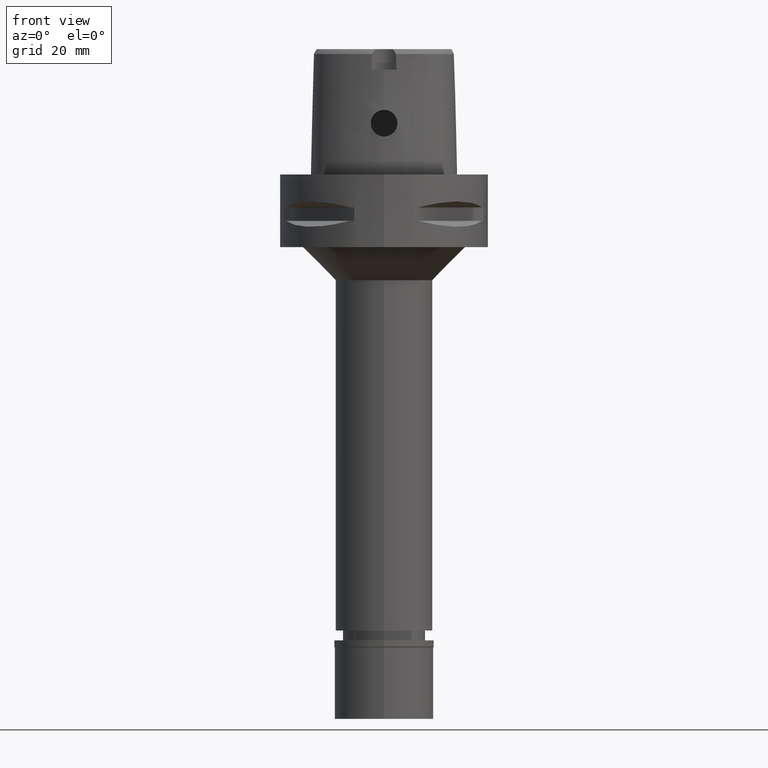
[diagram: clean part render]
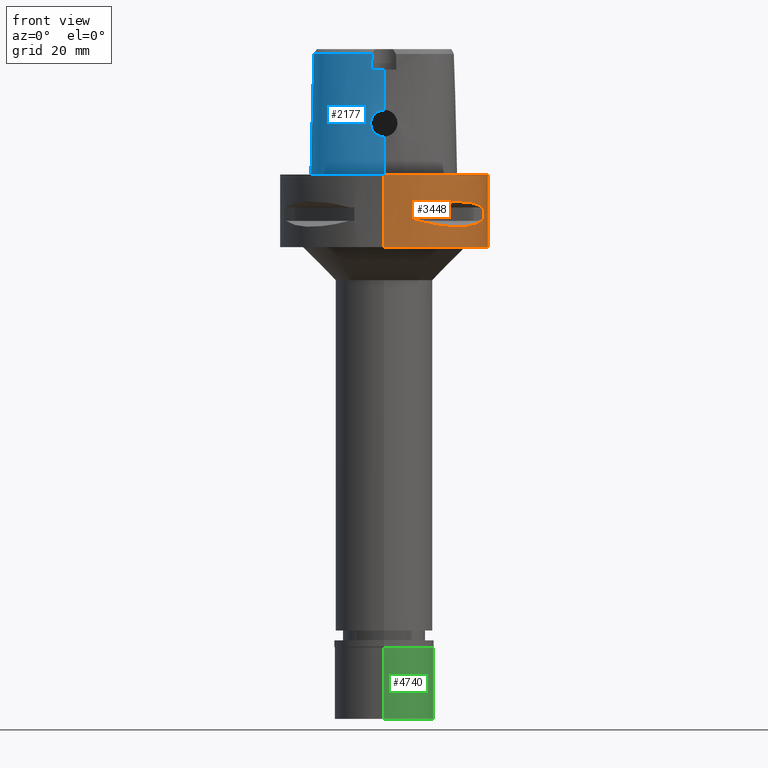
[diagram: same view with three faces highlighted in distinct colors, each labeled with its STEP entity id]
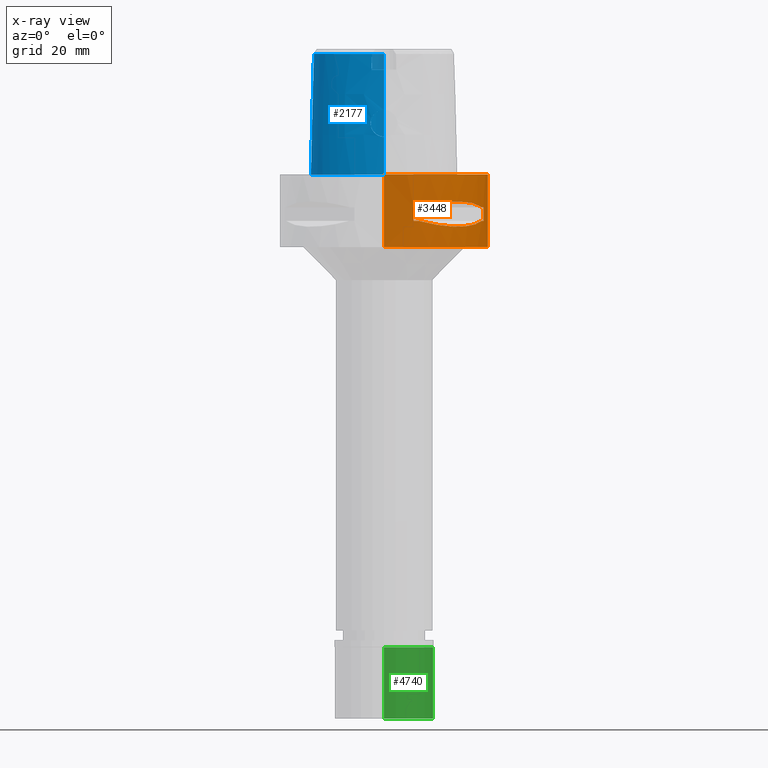
[diagram: x-ray of the same camera — body ghosted, the three highlighted faces saturated]
A machine part, front view with three faces highlighted in distinct colors.
The next image is the same camera in x-ray (body ghosted, the three faces saturated) — at least one of them is partly hidden behind the body in this view.
Their STEP definitions:

[orange] entity #3448 — the highlighted cylindrical surface (partial cylindrical patch) has radius 31.5 mm, axis along (0, 0, -1).
#1 = CARTESIAN_POINT ( 'NONE',  ( 8.981198972019999616, -30.19251670572000279, -9.950000000000001066 ) ) ;
#122 = LINE ( 'NONE', #2095, #3917 ) ;
#156 = B_SPLINE_CURVE_WITH_KNOTS ( 'NONE', 3,
 ( #4086, #4113, #2160, #1426, #1448, #232, #2215, #1370, #4639, #1171 ),
 .UNSPECIFIED., .F., .F.,
 ( 4, 2, 2, 2, 4 ),
 ( 0.0000000000000000000, 0.2500000000000000555, 0.5000000000000001110, 0.7500000000000002220, 1.000000000000000000 ),
 .UNSPECIFIED. ) ;
#160 = CARTESIAN_POINT ( 'NONE',  ( 29.71690375017999841, 10.44775724750000023, -9.950000000002001244 ) ) ;
#187 = DIRECTION ( 'NONE',  ( 0.0000000000000000000, 0.0000000000000000000, 1.000000000000000000 ) ) ;
#190 = EDGE_CURVE ( 'NONE', #754, #648, #3267, .T. ) ;
#215 = CARTESIAN_POINT ( 'NONE',  ( 29.71690375017999841, 10.44775724750000023, -9.950000000002001244 ) ) ;
#232 = CARTESIAN_POINT ( 'NONE',  ( 23.90617837153845571, -20.64154884321403571, -8.160613588491566261 ) ) ;
#266 = EDGE_CURVE ( 'NONE', #3827, #3046, #2297, .T. ) ;
#291 = ORIENTED_EDGE ( 'NONE', *, *, #4154, .T. ) ;
#294 = CARTESIAN_POINT ( 'NONE',  ( 27.88214534470568395, 14.84422749199026548, -8.906206096500943303 ) ) ;
#323 = CARTESIAN_POINT ( 'NONE',  ( 26.54368690921830520, -16.96123479565102699, -15.41365572341627121 ) ) ;
#328 = ORIENTED_EDGE ( 'NONE', *, *, #2028, .F. ) ;
#339 = VECTOR ( 'NONE', #3882, 1000.000000000000000 ) ;
#369 = EDGE_LOOP ( 'NONE', ( #1149, #328, #1451, #1521, #2359, #1048, #770, #291 ) ) ;
#392 = DIRECTION ( 'NONE',  ( 0.0000000000000000000, 0.0000000000000000000, 1.000000000000000000 ) ) ;
#399 = DIRECTION ( 'NONE',  ( 0.2851174276831918153, -0.9584925938322735872, 0.0000000000000000000 ) ) ;
#407 = CARTESIAN_POINT ( 'NONE',  ( 0.0000000000000000000, -31.50000000000000000, 0.0000000000000000000 ) ) ;
#410 = VERTEX_POINT ( 'NONE', #1 ) ;
#419 = CARTESIAN_POINT ( 'NONE',  ( 14.89252659060408668, 27.86285265925483046, -15.10765629752815009 ) ) ;
#426 = FACE_BOUND ( 'NONE', #1758, .T. ) ;
#434 = CARTESIAN_POINT ( 'NONE',  ( 30.19251670572000279, -8.981198972016999349, -14.05000000000000071 ) ) ;
#436 = CARTESIAN_POINT ( 'NONE',  ( 16.96123479565062198, 26.54368690921844731, -15.41365572341616819 ) ) ;
#460 = CARTESIAN_POINT ( 'NONE',  ( 21.46242677078534911, 23.08532645887771650, -15.83938991065519630 ) ) ;
#562 = CARTESIAN_POINT ( 'NONE',  ( 0.0000000000000000000, 1.319556926080999853E-14, -22.00000000000000000 ) ) ;
#603 = EDGE_CURVE ( 'NONE', #410, #3857, #122, .T. ) ;
#648 = VERTEX_POINT ( 'NONE', #1985 ) ;
#655 = CARTESIAN_POINT ( 'NONE',  ( 10.44775724750000023, 29.71690375017999841, -9.950000000002001244 ) ) ;
#660 = CARTESIAN_POINT ( 'NONE',  ( 29.71690375017999841, -10.44775724750000023, -14.05000000000000071 ) ) ;
#685 = CARTESIAN_POINT ( 'NONE',  ( 12.70097436183467110, 28.92472615205410236, -9.353533115209119231 ) ) ;
#698 = EDGE_CURVE ( 'NONE', #2826, #4051, #3151, .T. ) ;
#710 = B_SPLINE_CURVE_WITH_KNOTS ( 'NONE', 3,
 ( #215, #2227, #294, #3736, #3442, #2630, #4177, #3366, #685, #4955 ),
 .UNSPECIFIED., .F., .F.,
 ( 4, 2, 2, 2, 4 ),
 ( 0.0000000000000000000, 0.2500000000000000000, 0.5000000000000000000, 0.7500000000000000000, 1.000000000000000000 ),
 .UNSPECIFIED. ) ;
#713 = CARTESIAN_POINT ( 'NONE',  ( 26.01217882833934780, -17.76952662673609851, -15.52665221626610403 ) ) ;
#754 = VERTEX_POINT ( 'NONE', #3345 ) ;
#770 = ORIENTED_EDGE ( 'NONE', *, *, #3549, .T. ) ;
#785 = FACE_BOUND ( 'NONE', #369, .T. ) ;
#825 = CARTESIAN_POINT ( 'NONE',  ( 26.58330558444617608, 16.89910283486720743, -15.40446471307533827 ) ) ;
#832 = FACE_OUTER_BOUND ( 'NONE', #2686, .T. ) ;
#846 = CARTESIAN_POINT ( 'NONE',  ( 27.11872488589586183, 16.03138450077837618, -15.26880420107759129 ) ) ;
#873 = CARTESIAN_POINT ( 'NONE',  ( 0.0000000000000000000, 31.50000000000000000, -22.00000000000000000 ) ) ;
#1000 = AXIS2_PLACEMENT_3D ( 'NONE', #562, #187, #4344 ) ;
#1031 = CARTESIAN_POINT ( 'NONE',  ( 13.25636937907128399, -28.62019653467633518, -14.74888225542383857 ) ) ;
#1048 = ORIENTED_EDGE ( 'NONE', *, *, #603, .F. ) ;
#1133 = CARTESIAN_POINT ( 'NONE',  ( 8.981198972016999349, -30.19251670572000279, -14.05000000000000071 ) ) ;
#1149 = ORIENTED_EDGE ( 'NONE', *, *, #1340, .T. ) ;
#1171 = CARTESIAN_POINT ( 'NONE',  ( 29.71690375017999841, -10.44775724750000023, -9.950000000002001244 ) ) ;
#1235 = DIRECTION ( 'NONE',  ( 0.0000000000000000000, 0.0000000000000000000, -1.000000000000000000 ) ) ;
#1245 = EDGE_CURVE ( 'NONE', #3105, #3046, #3989, .T. ) ;
#1275 = CARTESIAN_POINT ( 'NONE',  ( 20.18579225686753986, 24.23018836744649462, -15.78559396979147422 ) ) ;
#1340 = EDGE_CURVE ( 'NONE', #3284, #1834, #4721, .T. ) ;
#1370 = CARTESIAN_POINT ( 'NONE',  ( 27.88210502990664352, -14.84430321566176403, -8.906184732005366200 ) ) ;
#1421 = CARTESIAN_POINT ( 'NONE',  ( 10.44775724750000023, -29.71690375017999841, -9.950000000002001244 ) ) ;
#1426 = CARTESIAN_POINT ( 'NONE',  ( 18.81455742174600942, -25.37277178159833824, -8.309746333095063164 ) ) ;
#1438 = CARTESIAN_POINT ( 'NONE',  ( 26.29071741523342709, -17.35163608580722894, -15.46976201925860828 ) ) ;
#1448 = CARTESIAN_POINT ( 'NONE',  ( 20.64154884321397176, -23.90617837153849479, -8.160627831289129830 ) ) ;
#1451 = ORIENTED_EDGE ( 'NONE', *, *, #190, .T. ) ;
#1487 = AXIS2_PLACEMENT_3D ( 'NONE', #2092, #4809, #3636 ) ;
#1491 = VECTOR ( 'NONE', #1235, 1000.000000000000000 ) ;
#1515 = CARTESIAN_POINT ( 'NONE',  ( 15.11986997312413017, -27.64634172017517599, -15.11207862404423352 ) ) ;
#1521 = ORIENTED_EDGE ( 'NONE', *, *, #3323, .F. ) ;
#1546 = DIRECTION ( 'NONE',  ( 0.9584925938322735872, 0.2851174276831918153, 0.0000000000000000000 ) ) ;
#1555 = CARTESIAN_POINT ( 'NONE',  ( 17.05047092244466000, 26.48642424310579813, -15.42670883407955884 ) ) ;
#1608 = CARTESIAN_POINT ( 'NONE',  ( 30.19251670572000279, 8.981198972016999349, -9.950000000000001066 ) ) ;
#1621 = DIRECTION ( 'NONE',  ( 0.0000000000000000000, 0.0000000000000000000, 1.000000000000000000 ) ) ;
#1663 = DIRECTION ( 'NONE',  ( 0.3316748332540863653, -0.9433937698468619626, 0.0000000000000000000 ) ) ;
#1691 = EDGE_CURVE ( 'NONE', #2745, #2869, #3180, .T. ) ;
#1725 = AXIS2_PLACEMENT_3D ( 'NONE', #2399, #4349, #2375 ) ;
#1758 = EDGE_LOOP ( 'NONE', ( #3200, #4683, #3103, #3004, #3053, #3324, #4545, #4759 ) ) ;
#1781 = DIRECTION ( 'NONE',  ( 0.0000000000000000000, 0.0000000000000000000, -1.000000000000000000 ) ) ;
#1834 = VERTEX_POINT ( 'NONE', #2774 ) ;
#1850 = CARTESIAN_POINT ( 'NONE',  ( 10.44775724750000023, -29.71690375017999841, -14.05000000000000071 ) ) ;
#1872 = CARTESIAN_POINT ( 'NONE',  ( 16.03138450079904231, -27.11872488588858587, -15.26880420108306247 ) ) ;
#1903 = EDGE_CURVE ( 'NONE', #3827, #3927, #2413, .T. ) ;
#1939 = CARTESIAN_POINT ( 'NONE',  ( 12.73197616791283870, 28.91382665367748928, -14.65467361754843800 ) ) ;
#1977 = DIRECTION ( 'NONE',  ( 0.0000000000000000000, 0.0000000000000000000, -1.000000000000000000 ) ) ;
#1985 = CARTESIAN_POINT ( 'NONE',  ( 29.71690375017999841, -10.44775724750000023, -14.05000000000000071 ) ) ;
#2028 = EDGE_CURVE ( 'NONE', #754, #1834, #5020, .T. ) ;
#2030 = CARTESIAN_POINT ( 'NONE',  ( 10.44775724750000023, 29.71690375017999841, -14.05000000000000071 ) ) ;
#2049 = AXIS2_PLACEMENT_3D ( 'NONE', #4322, #392, #3888 ) ;
#2051 = VECTOR ( 'NONE', #1621, 1000.000000000000000 ) ;
#2057 = CIRCLE ( 'NONE', #3042, 31.50000000000000711 ) ;
#2092 = CARTESIAN_POINT ( 'NONE',  ( 0.0000000000000000000, 1.319556926080999853E-14, -14.05000000000000071 ) ) ;
#2095 = CARTESIAN_POINT ( 'NONE',  ( 8.981198972016999349, -30.19251670572000279, -9.950000000000001066 ) ) ;
#2156 = ORIENTED_EDGE ( 'NONE', *, *, #3965, .T. ) ;
#2160 = CARTESIAN_POINT ( 'NONE',  ( 14.84422749211558390, -27.88214534463893557, -8.906206096465615119 ) ) ;
#2199 = CIRCLE ( 'NONE', #4858, 31.50000000000000711 ) ;
#2210 = VERTEX_POINT ( 'NONE', #1421 ) ;
#2215 = CARTESIAN_POINT ( 'NONE',  ( 25.37272068407230918, -18.81462633020653286, -8.309724968634816022 ) ) ;
#2227 = CARTESIAN_POINT ( 'NONE',  ( 28.92474506844685678, 12.70092055730897940, -9.353547358229718611 ) ) ;
#2232 = ORIENTED_EDGE ( 'NONE', *, *, #2303, .T. ) ;
#2235 = CARTESIAN_POINT ( 'NONE',  ( 11.58970337496372238, -29.31542262583958802, -14.35229357167590614 ) ) ;
#2297 = CIRCLE ( 'NONE', #4390, 31.50000000000001776 ) ;
#2303 = EDGE_CURVE ( 'NONE', #2826, #4378, #4891, .T. ) ;
#2336 = LINE ( 'NONE', #3878, #2962 ) ;
#2359 = ORIENTED_EDGE ( 'NONE', *, *, #4446, .T. ) ;
#2368 = CARTESIAN_POINT ( 'NONE',  ( 8.981198972016999349, 30.19251670572000279, -14.05000000000000071 ) ) ;
#2375 = DIRECTION ( 'NONE',  ( 0.0000000000000000000, -1.000000000000000000, 0.0000000000000000000 ) ) ;
#2392 = CARTESIAN_POINT ( 'NONE',  ( 17.76952662672345795, 26.01217882834468398, -15.52665221626313041 ) ) ;
#2399 = CARTESIAN_POINT ( 'NONE',  ( 0.0000000000000000000, 1.319556926080999853E-14, 7.750000000000000000 ) ) ;
#2407 = VERTEX_POINT ( 'NONE', #655 ) ;
#2413 = LINE ( 'NONE', #2368, #2051 ) ;
#2414 = CARTESIAN_POINT ( 'NONE',  ( 8.981198972016999349, 30.19251670572000279, -9.950000000000001066 ) ) ;
#2437 = CARTESIAN_POINT ( 'NONE',  ( 26.84474411199017752, 16.48208282228755550, -15.34094883778170093 ) ) ;
#2458 = AXIS2_PLACEMENT_3D ( 'NONE', #3687, #2573, #3659 ) ;
#2462 = CIRCLE ( 'NONE', #1487, 31.50000000000000711 ) ;
#2486 = DIRECTION ( 'NONE',  ( 0.0000000000000000000, 0.0000000000000000000, -1.000000000000000000 ) ) ;
#2507 = DIRECTION ( 'NONE',  ( 0.0000000000000000000, 0.0000000000000000000, 1.000000000000000000 ) ) ;
#2573 = DIRECTION ( 'NONE',  ( 0.0000000000000000000, 0.0000000000000000000, -1.000000000000000000 ) ) ;
#2578 = CARTESIAN_POINT ( 'NONE',  ( 27.86285265926396093, -14.89252659057812345, -15.10765629752127559 ) ) ;
#2630 = CARTESIAN_POINT ( 'NONE',  ( 20.64154884328073081, 23.90617837147177482, -8.160613588468017099 ) ) ;
#2638 = CARTESIAN_POINT ( 'NONE',  ( 25.43927894890251551, -18.59229662067769340, -15.62866126335070049 ) ) ;
#2659 = CARTESIAN_POINT ( 'NONE',  ( 24.23018836743425197, -20.18579225689640921, -15.78559396979826346 ) ) ;
#2681 = CARTESIAN_POINT ( 'NONE',  ( 16.48208282229863286, -26.84474411198628374, -15.34094883778463903 ) ) ;
#2686 = EDGE_LOOP ( 'NONE', ( #2232, #3969, #2156, #4785 ) ) ;
#2709 = CARTESIAN_POINT ( 'NONE',  ( 0.0000000000000000000, 1.319556926080999853E-14, -9.950000000000001066 ) ) ;
#2745 = VERTEX_POINT ( 'NONE', #3177 ) ;
#2754 = CARTESIAN_POINT ( 'NONE',  ( 0.0000000000000000000, 31.50000000000000000, 0.0000000000000000000 ) ) ;
#2773 = CARTESIAN_POINT ( 'NONE',  ( 29.31542262584909153, 11.58970337493671998, -14.35229357166876873 ) ) ;
#2774 = CARTESIAN_POINT ( 'NONE',  ( 30.19251670572000279, -8.981198972016999349, -9.950000000000001066 ) ) ;
#2806 = CYLINDRICAL_SURFACE ( 'NONE', #1725, 31.50000000000000000 ) ;
#2826 = VERTEX_POINT ( 'NONE', #2754 ) ;
#2869 = VERTEX_POINT ( 'NONE', #160 ) ;
#2962 = VECTOR ( 'NONE', #1781, 1000.000000000000000 ) ;
#3004 = ORIENTED_EDGE ( 'NONE', *, *, #1245, .F. ) ;
#3013 = CARTESIAN_POINT ( 'NONE',  ( 26.48642424310494903, -17.05047092244668505, -15.42670883408004023 ) ) ;
#3021 = DIRECTION ( 'NONE',  ( 0.9584925938322735872, -0.2851174276831918153, 0.0000000000000000000 ) ) ;
#3042 = AXIS2_PLACEMENT_3D ( 'NONE', #3931, #4664, #1663 ) ;
#3044 = CARTESIAN_POINT ( 'NONE',  ( 23.08532645887072476, -21.46242677080184436, -15.83938991065908120 ) ) ;
#3046 = VERTEX_POINT ( 'NONE', #4072 ) ;
#3053 = ORIENTED_EDGE ( 'NONE', *, *, #3212, .T. ) ;
#3099 = CARTESIAN_POINT ( 'NONE',  ( 0.0000000000000000000, 1.319556926080999853E-14, -9.950000000000001066 ) ) ;
#3103 = ORIENTED_EDGE ( 'NONE', *, *, #266, .T. ) ;
#3105 = VERTEX_POINT ( 'NONE', #3264 ) ;
#3151 = LINE ( 'NONE', #3886, #4163 ) ;
#3173 = CARTESIAN_POINT ( 'NONE',  ( 28.62019653469295832, 13.25636937902403645, -14.74888225541133124 ) ) ;
#3177 = CARTESIAN_POINT ( 'NONE',  ( 30.19251670572000279, 8.981198972019999616, -9.950000000000001066 ) ) ;
#3180 = CIRCLE ( 'NONE', #4656, 31.50000000000001776 ) ;
#3181 = AXIS2_PLACEMENT_3D ( 'NONE', #4640, #4917, #3021 ) ;
#3187 = CIRCLE ( 'NONE', #4886, 31.50000000000001776 ) ;
#3200 = ORIENTED_EDGE ( 'NONE', *, *, #4709, .T. ) ;
#3203 = CARTESIAN_POINT ( 'NONE',  ( 27.64634172018763536, 15.11986997308868830, -15.11207862403486146 ) ) ;
#3212 = EDGE_CURVE ( 'NONE', #3105, #4524, #2462, .T. ) ;
#3264 = CARTESIAN_POINT ( 'NONE',  ( 29.71690375017999841, 10.44775724750000023, -14.05000000000000071 ) ) ;
#3267 = CIRCLE ( 'NONE', #3181, 31.50000000000001776 ) ;
#3284 = VERTEX_POINT ( 'NONE', #4151 ) ;
#3323 = EDGE_CURVE ( 'NONE', #4382, #648, #4828, .T. ) ;
#3324 = ORIENTED_EDGE ( 'NONE', *, *, #3394, .F. ) ;
#3342 = CARTESIAN_POINT ( 'NONE',  ( 0.0000000000000000000, 1.319556926080999853E-14, -9.950000000000001066 ) ) ;
#3345 = CARTESIAN_POINT ( 'NONE',  ( 30.19251670572000279, -8.981198972019999616, -14.05000000000000071 ) ) ;
#3366 = CARTESIAN_POINT ( 'NONE',  ( 14.84430321578704337, 27.88210502983996619, -8.906184731970038015 ) ) ;
#3394 = EDGE_CURVE ( 'NONE', #2745, #4524, #3469, .T. ) ;
#3397 = CARTESIAN_POINT ( 'NONE',  ( 16.89910283486738862, -26.58330558444628977, -15.40446471307545906 ) ) ;
#3442 = CARTESIAN_POINT ( 'NONE',  ( 23.90617837147169666, 20.64154884328081252, -8.160627831312682545 ) ) ;
#3448 = ADVANCED_FACE ( 'NONE', ( #832, #785, #426 ), #2806, .T. ) ;
#3469 = LINE ( 'NONE', #1608, #1491 ) ;
#3547 = CARTESIAN_POINT ( 'NONE',  ( 0.0000000000000000000, 1.319556926080999853E-14, -14.05000000000000071 ) ) ;
#3549 = EDGE_CURVE ( 'NONE', #410, #2210, #3187, .T. ) ;
#3555 = CARTESIAN_POINT ( 'NONE',  ( 26.70521063584740062, 16.70616724745824655, -15.37546661817944127 ) ) ;
#3574 = CARTESIAN_POINT ( 'NONE',  ( 16.98999780422272465, 26.52527364208734895, -15.41788098766619974 ) ) ;
#3636 = DIRECTION ( 'NONE',  ( 0.9433937698468619626, 0.3316748332540863653, 0.0000000000000000000 ) ) ;
#3640 = DIRECTION ( 'NONE',  ( 0.0000000000000000000, 0.0000000000000000000, -1.000000000000000000 ) ) ;
#3659 = DIRECTION ( 'NONE',  ( 0.0000000000000000000, 1.000000000000000000, 0.0000000000000000000 ) ) ;
#3687 = CARTESIAN_POINT ( 'NONE',  ( 0.0000000000000000000, 1.319556926080999853E-14, 0.0000000000000000000 ) ) ;
#3736 = CARTESIAN_POINT ( 'NONE',  ( 25.37277178168286440, 18.81455742163205258, -8.309746333130389573 ) ) ;
#3743 = CARTESIAN_POINT ( 'NONE',  ( 16.86571563436929466, -26.60451452154890717, -15.39949295786343164 ) ) ;
#3788 = CARTESIAN_POINT ( 'NONE',  ( 8.981198972019999616, 30.19251670572000279, -14.05000000000000071 ) ) ;
#3793 = CARTESIAN_POINT ( 'NONE',  ( 28.91382665368659488, -12.73197616788688968, -14.65467361754156350 ) ) ;
#3818 = CARTESIAN_POINT ( 'NONE',  ( 20.65093790438460530, -23.89673728052242296, -15.83935804901696542 ) ) ;
#3827 = VERTEX_POINT ( 'NONE', #3788 ) ;
#3857 = VERTEX_POINT ( 'NONE', #1133 ) ;
#3878 = CARTESIAN_POINT ( 'NONE',  ( 0.0000000000000000000, -31.50000000000000000, 0.0000000000000000000 ) ) ;
#3881 = EDGE_CURVE ( 'NONE', #2869, #2407, #710, .T. ) ;
#3882 = DIRECTION ( 'NONE',  ( 0.0000000000000000000, 0.0000000000000000000, 1.000000000000000000 ) ) ;
#3886 = CARTESIAN_POINT ( 'NONE',  ( 0.0000000000000000000, 31.50000000000000000, 0.0000000000000000000 ) ) ;
#3888 = DIRECTION ( 'NONE',  ( 0.9433937698468619626, -0.3316748332540863653, 0.0000000000000000000 ) ) ;
#3917 = VECTOR ( 'NONE', #2486, 1000.000000000000000 ) ;
#3918 = CARTESIAN_POINT ( 'NONE',  ( 17.35163608580045391, 26.29071741523629768, -15.46976201925701133 ) ) ;
#3927 = VERTEX_POINT ( 'NONE', #2414 ) ;
#3931 = CARTESIAN_POINT ( 'NONE',  ( 0.0000000000000000000, 1.319556926080999853E-14, -14.05000000000000071 ) ) ;
#3935 = CARTESIAN_POINT ( 'NONE',  ( 18.59229662065603605, 25.43927894891167796, -15.62866126334560413 ) ) ;
#3954 = CARTESIAN_POINT ( 'NONE',  ( 23.89673728055542767, 20.65093790437063248, -15.83935804902473343 ) ) ;
#3965 = EDGE_CURVE ( 'NONE', #4735, #4051, #4725, .T. ) ;
#3969 = ORIENTED_EDGE ( 'NONE', *, *, #4268, .T. ) ;
#3989 = B_SPLINE_CURVE_WITH_KNOTS ( 'NONE', 3,
 ( #5025, #2773, #3173, #3203, #846, #2437, #3555, #4342, #4652, #825, #4741, #3954, #460, #1275, #3935, #2392, #3918, #4296, #1555, #3574, #436, #419, #1939, #2030 ),
 .UNSPECIFIED., .F., .F.,
 ( 4, 1, 1, 1, 1, 1, 2, 2, 2, 1, 1, 1, 1, 1, 2, 2, 4 ),
 ( 0.0000000000000000000, 0.1250000000000036360, 0.1875000000000056344, 0.2187500000000066336, 0.2343750000000070222, 0.2421875000000072164, 0.2460937500000072997, 0.2500000000000073830, 0.5000000000000048850, 0.6250000000000037748, 0.6875000000000031086, 0.7187500000000027756, 0.7343750000000025535, 0.7421875000000023315, 0.7460937500000024425, 0.7500000000000025535, 1.000000000000000000 ),
 .UNSPECIFIED. ) ;
#4051 = VERTEX_POINT ( 'NONE', #873 ) ;
#4072 = CARTESIAN_POINT ( 'NONE',  ( 10.44775724750000023, 29.71690375017999841, -14.05000000000000071 ) ) ;
#4073 = CARTESIAN_POINT ( 'NONE',  ( 0.0000000000000000000, -31.50000000000000000, -22.00000000000000000 ) ) ;
#4086 = CARTESIAN_POINT ( 'NONE',  ( 10.44775724750000023, -29.71690375017999841, -9.950000000002001244 ) ) ;
#4113 = CARTESIAN_POINT ( 'NONE',  ( 12.70092055739809744, -28.92474506841551118, -9.353547358206167672 ) ) ;
#4151 = CARTESIAN_POINT ( 'NONE',  ( 29.71690375017999841, -10.44775724750000023, -9.950000000002001244 ) ) ;
#4154 = EDGE_CURVE ( 'NONE', #2210, #3284, #156, .T. ) ;
#4163 = VECTOR ( 'NONE', #3640, 1000.000000000000000 ) ;
#4177 = CARTESIAN_POINT ( 'NONE',  ( 18.81462633032052167, 25.37272068398780078, -8.309724968599487838 ) ) ;
#4230 = CARTESIAN_POINT ( 'NONE',  ( 18.86897208073048660, -25.32725744467385454, -15.69588095933403160 ) ) ;
#4243 = DIRECTION ( 'NONE',  ( 0.0000000000000000000, 0.0000000000000000000, 1.000000000000000000 ) ) ;
#4266 = DIRECTION ( 'NONE',  ( 0.2851174276831918153, 0.9584925938322735872, 0.0000000000000000000 ) ) ;
#4268 = EDGE_CURVE ( 'NONE', #4378, #4735, #2336, .T. ) ;
#4296 = CARTESIAN_POINT ( 'NONE',  ( 17.14106442934976826, 26.42800887047588532, -15.43984550238772790 ) ) ;
#4322 = CARTESIAN_POINT ( 'NONE',  ( 0.0000000000000000000, 1.319556926080999853E-14, -9.950000000000001066 ) ) ;
#4342 = CARTESIAN_POINT ( 'NONE',  ( 26.64486562695979188, 16.80193241490626122, -15.38992683735969003 ) ) ;
#4344 = DIRECTION ( 'NONE',  ( 0.0000000000000000000, -1.000000000000000000, 0.0000000000000000000 ) ) ;
#4349 = DIRECTION ( 'NONE',  ( 0.0000000000000000000, 0.0000000000000000000, -1.000000000000000000 ) ) ;
#4356 = CARTESIAN_POINT ( 'NONE',  ( 10.44775724750000023, -29.71690375017999841, -14.05000000000000071 ) ) ;
#4378 = VERTEX_POINT ( 'NONE', #407 ) ;
#4382 = VERTEX_POINT ( 'NONE', #4356 ) ;
#4390 = AXIS2_PLACEMENT_3D ( 'NONE', #3547, #1977, #4266 ) ;
#4446 = EDGE_CURVE ( 'NONE', #4382, #3857, #2057, .T. ) ;
#4524 = VERTEX_POINT ( 'NONE', #4732 ) ;
#4545 = ORIENTED_EDGE ( 'NONE', *, *, #1691, .T. ) ;
#4557 = CARTESIAN_POINT ( 'NONE',  ( 26.52527364208691196, -16.98999780422374428, -15.41788098766643778 ) ) ;
#4586 = CARTESIAN_POINT ( 'NONE',  ( 16.80193241490956879, -26.64486562695862659, -15.38992683736056932 ) ) ;
#4608 = CARTESIAN_POINT ( 'NONE',  ( 16.70616724746396642, -26.70521063584539334, -15.37546661818095473 ) ) ;
#4639 = CARTESIAN_POINT ( 'NONE',  ( 28.92472615208540887, -12.70097436174559391, -9.353533115232668393 ) ) ;
#4640 = CARTESIAN_POINT ( 'NONE',  ( 0.0000000000000000000, 1.319556926080999853E-14, -14.05000000000000071 ) ) ;
#4652 = CARTESIAN_POINT ( 'NONE',  ( 26.60451452154948981, 16.86571563436761068, -15.39949295786298400 ) ) ;
#4656 = AXIS2_PLACEMENT_3D ( 'NONE', #3099, #4243, #1546 ) ;
#4659 = DIRECTION ( 'NONE',  ( 0.0000000000000000000, 0.0000000000000000000, 1.000000000000000000 ) ) ;
#4664 = DIRECTION ( 'NONE',  ( 0.0000000000000000000, 0.0000000000000000000, -1.000000000000000000 ) ) ;
#4683 = ORIENTED_EDGE ( 'NONE', *, *, #1903, .F. ) ;
#4709 = EDGE_CURVE ( 'NONE', #2407, #3927, #2199, .T. ) ;
#4721 = CIRCLE ( 'NONE', #2049, 31.50000000000000711 ) ;
#4725 = CIRCLE ( 'NONE', #1000, 31.50000000000000000 ) ;
#4732 = CARTESIAN_POINT ( 'NONE',  ( 30.19251670572000279, 8.981198972016999349, -14.05000000000000071 ) ) ;
#4735 = VERTEX_POINT ( 'NONE', #4073 ) ;
#4741 = CARTESIAN_POINT ( 'NONE',  ( 25.32725744468093509, 18.86897208074246635, -15.69588095934180316 ) ) ;
#4759 = ORIENTED_EDGE ( 'NONE', *, *, #3881, .T. ) ;
#4785 = ORIENTED_EDGE ( 'NONE', *, *, #698, .F. ) ;
#4809 = DIRECTION ( 'NONE',  ( 0.0000000000000000000, 0.0000000000000000000, -1.000000000000000000 ) ) ;
#4828 = B_SPLINE_CURVE_WITH_KNOTS ( 'NONE', 3,
 ( #1850, #2235, #1031, #1515, #1872, #2681, #4608, #4586, #3743, #3397, #4230, #3818, #3044, #2659, #2638, #713, #1438, #4937, #3013, #4557, #323, #2578, #3793, #660 ),
 .UNSPECIFIED., .F., .F.,
 ( 4, 1, 1, 1, 1, 1, 2, 2, 2, 1, 1, 1, 1, 1, 2, 2, 4 ),
 ( 0.0000000000000000000, 0.1250000000000019429, 0.1875000000000029143, 0.2187500000000035250, 0.2343750000000039135, 0.2421875000000040801, 0.2460937500000041356, 0.2500000000000041633, 0.4999999999999987788, 0.6249999999999961142, 0.6874999999999948930, 0.7187499999999945599, 0.7343749999999943379, 0.7421874999999941158, 0.7460937499999938938, 0.7499999999999937828, 1.000000000000000000 ),
 .UNSPECIFIED. ) ;
#4858 = AXIS2_PLACEMENT_3D ( 'NONE', #3342, #2507, #4884 ) ;
#4884 = DIRECTION ( 'NONE',  ( 0.3316748332540863653, 0.9433937698468619626, 0.0000000000000000000 ) ) ;
#4886 = AXIS2_PLACEMENT_3D ( 'NONE', #2709, #4659, #399 ) ;
#4891 = CIRCLE ( 'NONE', #2458, 31.50000000000000000 ) ;
#4917 = DIRECTION ( 'NONE',  ( 0.0000000000000000000, 0.0000000000000000000, -1.000000000000000000 ) ) ;
#4937 = CARTESIAN_POINT ( 'NONE',  ( 26.42800887047440028, -17.14106442935327124, -15.43984550238855391 ) ) ;
#4955 = CARTESIAN_POINT ( 'NONE',  ( 10.44775724750000023, 29.71690375017999841, -9.950000000002001244 ) ) ;
#5020 = LINE ( 'NONE', #434, #339 ) ;
#5025 = CARTESIAN_POINT ( 'NONE',  ( 29.71690375017999841, 10.44775724750000023, -14.05000000000000071 ) ) ;

[blue] entity #2177 — the highlighted face is a freeform B-spline surface patch.
#18 = CARTESIAN_POINT ( 'NONE',  ( -2.113823674789727214, -20.67500002902034240, -1.161005397208461978E-06 ) ) ;
#24 = EDGE_CURVE ( 'NONE', #3973, #3619, #4098, .T. ) ;
#29 = CARTESIAN_POINT ( 'NONE',  ( -4.038031914720374260, -20.04584209172325870, 15.81781984753358472 ) ) ;
#44 = CARTESIAN_POINT ( 'NONE',  ( -3.848403410397717828, -20.04310851184499498, 16.79149714040716646 ) ) ;
#63 = CARTESIAN_POINT ( 'NONE',  ( -3.925407708630975545, -20.04099055260220652, 16.53138977182821634 ) ) ;
#91 = CARTESIAN_POINT ( 'NONE',  ( -3.738021026999547303, -20.04832921641929389, 17.05876513949583284 ) ) ;
#103 = CARTESIAN_POINT ( 'NONE',  ( -5.105252915177000084, 22.54305024007999947, -0.7304375801958999936 ) ) ;
#115 = CARTESIAN_POINT ( 'NONE',  ( -4.049663826248561804, -20.05088590020228523, 15.56119206774791230 ) ) ;
#125 = CARTESIAN_POINT ( 'NONE',  ( -21.44619304730999687, -6.759806567280999268, 24.59139853325999781 ) ) ;
#141 = CARTESIAN_POINT ( 'NONE',  ( -20.09619618740674696, -10.23243843868675107, 36.52186244848005003 ) ) ;
#153 = CARTESIAN_POINT ( 'NONE',  ( -17.25769860223000052, 9.963736584963999832, 37.25231658999000217 ) ) ;
#165 = VECTOR ( 'NONE', #602, 1000.000000000000114 ) ;
#184 = CARTESIAN_POINT ( 'NONE',  ( -2.503210914540999976, 22.99958943617000173, 11.93048047653000054 ) ) ;
#195 = CARTESIAN_POINT ( 'NONE',  ( -3.637738201363999835, -19.56971413236999879, 36.52186244848000030 ) ) ;
#205 = CARTESIAN_POINT ( 'NONE',  ( -10.55288408666000066, 18.94467590841999893, 11.93048047653000054 ) ) ;
#216 = CARTESIAN_POINT ( 'NONE',  ( -6.933881406493999842E-13, -20.38876923348000147, 11.44999999999999929 ) ) ;
#226 = CARTESIAN_POINT ( 'NONE',  ( -6.344715576255000045, -20.31619964721000215, -0.7304375801958999936 ) ) ;
#241 = CARTESIAN_POINT ( 'NONE',  ( -17.90324032096188134, -13.53935111955360071, 36.52186244848005003 ) ) ;
#255 = CARTESIAN_POINT ( 'NONE',  ( -1.836486898528999934, -19.76356470748000049, 37.25231658999000217 ) ) ;
#282 = CARTESIAN_POINT ( 'NONE',  ( -16.77374386013000063, -15.44292476913000201, 11.93048047653000054 ) ) ;
#305 = CARTESIAN_POINT ( 'NONE',  ( -18.89485289227999942, -12.27684381621999954, 37.25231658999000217 ) ) ;
#333 = CARTESIAN_POINT ( 'NONE',  ( -2.360389010911050356, -20.12578017861218882, 18.79373387522194960 ) ) ;
#370 = CARTESIAN_POINT ( 'NONE',  ( -3.671249123513567802, -19.60525173594972514, 34.94790829898666829 ) ) ;
#391 = CARTESIAN_POINT ( 'NONE',  ( -22.05732877207013942, -6.847636722896392136, -1.161005397208461978E-06 ) ) ;
#393 = DIRECTION ( 'NONE',  ( 1.536146892539960473E-12, 0.02499051290971940689, -0.9996876883629751687 ) ) ;
#427 = CARTESIAN_POINT ( 'NONE',  ( -2.823299992937056579, -20.10104229143709631, 18.40378355436299884 ) ) ;
#444 = CARTESIAN_POINT ( 'NONE',  ( -1.812908732308999990E-11, 22.56201468012000078, 36.52186680743999858 ) ) ;
#446 = CARTESIAN_POINT ( 'NONE',  ( -3.089131642920632359, -20.21685897408097432, 12.88004451868197009 ) ) ;
#465 = ORIENTED_EDGE ( 'NONE', *, *, #676, .F. ) ;
#468 = CARTESIAN_POINT ( 'NONE',  ( -2.852856104025950579, -20.09931387729061569, 18.37467926461776813 ) ) ;
#479 = CARTESIAN_POINT ( 'NONE',  ( -4.987110685026999946, 22.24795284958999986, 11.93048047653000054 ) ) ;
#490 = EDGE_CURVE ( 'NONE', #1791, #3619, #1394, .T. ) ;
#498 = CARTESIAN_POINT ( 'NONE',  ( -3.646271025386285114, -20.14180172674243963, 13.73229968810705337 ) ) ;
#512 = CARTESIAN_POINT ( 'NONE',  ( -0.5985508206572000001, 23.20171281890999992, 11.93048047653000054 ) ) ;
#531 = CARTESIAN_POINT ( 'NONE',  ( -3.736722311398999796, -19.67781602443999844, 31.80000000000000071 ) ) ;
#533 = CARTESIAN_POINT ( 'NONE',  ( -10.75753573655000039, 19.18839675560999680, -0.7304375801958999936 ) ) ;
#556 = CARTESIAN_POINT ( 'NONE',  ( 0.4569144571166000035, 22.85341801418000074, 24.59139853325999781 ) ) ;
#573 = CARTESIAN_POINT ( 'NONE',  ( -2.376843896515264731, 22.39422508474297757, 36.52186244848005003 ) ) ;
#587 = CARTESIAN_POINT ( 'NONE',  ( 0.6850314155794999804, 22.83959056890999761, 24.59139853325999781 ) ) ;
#600 = CARTESIAN_POINT ( 'NONE',  ( -2.086814383339319345, -20.31269213283853503, 12.02647857451320945 ) ) ;
#602 = DIRECTION ( 'NONE',  ( -4.234993304549874747E-13, -0.02499051295389925070, -0.9996876883618708298 ) ) ;
#611 = CARTESIAN_POINT ( 'NONE',  ( -18.12052909247999821, -13.74516032317999858, 24.59139853325999781 ) ) ;
#637 = CARTESIAN_POINT ( 'NONE',  ( -10.91263711300999972, -18.01320810237000103, 37.25231658999000217 ) ) ;
#676 = EDGE_CURVE ( 'NONE', #2667, #3024, #2733, .T. ) ;
#693 = CARTESIAN_POINT ( 'NONE',  ( 0.6779535350890000256, -20.37023526529000250, 11.93048047653000054 ) ) ;
#704 = CARTESIAN_POINT ( 'NONE',  ( -10.74572892936134849, 19.17433595985205130, -1.161005397208461978E-06 ) ) ;
#806 = CARTESIAN_POINT ( 'NONE',  ( -2.095753548414849732, -20.13818364214428058, 18.96577014705866304 ) ) ;
#833 = CARTESIAN_POINT ( 'NONE',  ( -3.788010122578854943, -20.11815763408452185, 14.06624340821270636 ) ) ;
#857 = CARTESIAN_POINT ( 'NONE',  ( -4.001055636210811173, -20.04208398455350704, 16.14154222857778009 ) ) ;
#866 = EDGE_CURVE ( 'NONE', #2027, #3024, #2253, .T. ) ;
#867 = CARTESIAN_POINT ( 'NONE',  ( 0.4823619556325000057, 23.48603817965999951, -0.7304375801958999936 ) ) ;
#881 = CARTESIAN_POINT ( 'NONE',  ( -3.765489374950849566, -20.12204791086956845, 14.00864527312965357 ) ) ;
#896 = CARTESIAN_POINT ( 'NONE',  ( -21.05621916115999781, -0.4440251502929999927, 37.25231658999000217 ) ) ;
#916 = CARTESIAN_POINT ( 'NONE',  ( -3.081149392577403390, -20.08583124627778460, 18.14629112890300888 ) ) ;
#927 = CARTESIAN_POINT ( 'NONE',  ( -21.57281239023999930, -9.001246194475998053, -0.7304375801958999936 ) ) ;
#940 = CARTESIAN_POINT ( 'NONE',  ( -21.07430010672443643, -0.4408303445192865433, 36.52186244848005003 ) ) ;
#950 = CARTESIAN_POINT ( 'NONE',  ( -21.31039837706000029, -4.105938496761999623, 37.25231658999000217 ) ) ;
#965 = CARTESIAN_POINT ( 'NONE',  ( -17.27359245833160983, 9.972912913898701603, 36.52186244848005003 ) ) ;
#977 = CARTESIAN_POINT ( 'NONE',  ( -13.93560872902000014, 15.24203796926999921, 24.59139853325999781 ) ) ;
#995 = CARTESIAN_POINT ( 'NONE',  ( -1.559921522257989634, -20.34641501698343546, 11.76246137009469628 ) ) ;
#1012 = CARTESIAN_POINT ( 'NONE',  ( 0.6840430853087000607, -20.68668154738999831, -0.7304375801958999936 ) ) ;
#1038 = CARTESIAN_POINT ( 'NONE',  ( -0.5036866637249095557, -20.18406862059044471, 19.52728785669985001 ) ) ;
#1054 = CARTESIAN_POINT ( 'NONE',  ( -18.90964971337798062, -12.28759719904780923, 36.52186244848005003 ) ) ;
#1066 = CARTESIAN_POINT ( 'NONE',  ( -1.853278696385999957, -20.08023933720000187, 24.59139853325999781 ) ) ;
#1097 = CARTESIAN_POINT ( 'NONE',  ( -20.36913780162999998, -10.35391846121000015, 24.59139853325999781 ) ) ;
#1121 = CARTESIAN_POINT ( 'NONE',  ( -14.68244496996000059, -17.23001772813000088, -0.7304375801958999936 ) ) ;
#1127 = ORIENTED_EDGE ( 'NONE', *, *, #866, .T. ) ;
#1214 = CARTESIAN_POINT ( 'NONE',  ( -3.698122373792616546, -20.13343971463959647, 13.84482020408002612 ) ) ;
#1225 = CARTESIAN_POINT ( 'NONE',  ( -14.67337965860573945, -17.21410158779837474, -1.161005397208461978E-06 ) ) ;
#1237 = CARTESIAN_POINT ( 'NONE',  ( -1.768917262173087979, -20.15190475906379319, 19.14568281053183085 ) ) ;
#1262 = CARTESIAN_POINT ( 'NONE',  ( -2.141634863663407717, -20.13611892945428750, 18.93776449056396061 ) ) ;
#1265 = B_SPLINE_CURVE_WITH_KNOTS ( 'NONE', 3,
 ( #195, #2113, #3632, #2924, #3738, #2985, #241, #1054, #4015, #141, #3259, #4469, #4800, #940, #3289, #965, #2551, #4096, #2524, #4067, #573, #3313, #4848 ),
 .UNSPECIFIED., .F., .F.,
 ( 4, 1, 1, 1, 1, 1, 1, 1, 1, 1, 1, 1, 1, 1, 1, 1, 1, 1, 1, 1, 4 ),
 ( 0.0000000000000000000, 0.03580973941721924542, 0.1234633994701801463, 0.1672902294966080450, 0.2111170595230359437, 0.2549438895495689250, 0.2768573045627829576, 0.2987707195759968237, 0.3206841345892108563, 0.3425975496024247224, 0.3864243796289578703, 0.4302512096552805199, 0.4740780396818136677, 0.5617316997346692986, 0.6493853597877355943, 0.7370390198405912807, 0.8246926798934470781, 0.8685195099199800595, 0.9123463399464394330, 0.9561731699728883704, 1.000000000000000000 ),
 .UNSPECIFIED. ) ;
#1272 = CARTESIAN_POINT ( 'NONE',  ( -14.17879762356999862, 15.44741198508999958, 11.93048047653000054 ) ) ;
#1286 = CARTESIAN_POINT ( 'NONE',  ( -3.724287987559095292, -20.04899117660409757, 17.09139312267861754 ) ) ;
#1293 = CARTESIAN_POINT ( 'NONE',  ( -7.580410838898000492, 21.33037926075000001, -0.7304375801958999936 ) ) ;
#1305 = CARTESIAN_POINT ( 'NONE',  ( -3.466483550186857165, -20.16833646136318592, 13.40542637771266143 ) ) ;
#1356 = CARTESIAN_POINT ( 'NONE',  ( -2.421503357379958921, -20.28648737493530518, 12.24279215500328100 ) ) ;
#1366 = CARTESIAN_POINT ( 'NONE',  ( -2.373090333086999681, 22.37624354560000128, 37.25231658999000217 ) ) ;
#1373 = ORIENTED_EDGE ( 'NONE', *, *, #1539, .F. ) ;
#1378 = CARTESIAN_POINT ( 'NONE',  ( -2.875757950340811053, -20.24102512592879322, 12.64823125461289521 ) ) ;
#1391 = CARTESIAN_POINT ( 'NONE',  ( -17.88993660669000008, -13.52675025288000121, 37.25231658999000217 ) ) ;
#1394 = B_SPLINE_CURVE_WITH_KNOTS ( 'NONE', 3,
 ( #4928, #1479, #3005, #2248, #4197, #704, #2270, #4983, #1508, #3805, #4599, #391, #1960, #4295, #2464, #4250, #1687, #3504, #1225, #2772, #5023, #18, #4000 ),
 .UNSPECIFIED., .F., .F.,
 ( 4, 1, 1, 1, 1, 1, 1, 1, 1, 1, 1, 1, 1, 1, 1, 1, 1, 1, 1, 1, 4 ),
 ( 0.0000000000000000000, 0.04166666666724999635, 0.08333333333387001052, 0.1250000000004999889, 0.1666666666672000086, 0.2500000000004000134, 0.3333333333335999904, 0.4166666666670000296, 0.5000000000001999512, 0.5416666666668999985, 0.5833333333333999837, 0.6250000000001000311, 0.6458333333333999837, 0.6666666666667000474, 0.6875000000000000000, 0.7083333333333000637, 0.7500000000000000000, 0.7916666666666000163, 0.8333333333332000326, 0.9166666666664999852, 1.000000000000000000 ),
 .UNSPECIFIED. ) ;
#1407 = CARTESIAN_POINT ( 'NONE',  ( -1.758544761671193557, -20.33485355119341520, 11.85123508312359419 ) ) ;
#1411 = CARTESIAN_POINT ( 'NONE',  ( -6.933881406493999842E-13, -20.38876923348000147, 11.44999999999999929 ) ) ;
#1434 = CARTESIAN_POINT ( 'NONE',  ( -1.592612062464944689, -20.34460894491118665, 11.77623291199201994 ) ) ;
#1442 = CARTESIAN_POINT ( 'NONE',  ( -1.320565687276267663, -20.16697761691573731, 19.32976498245970731 ) ) ;
#1467 = CARTESIAN_POINT ( 'NONE',  ( -1.492522727690081874, -20.16161937968067974, 19.26502569008681931 ) ) ;
#1479 = CARTESIAN_POINT ( 'NONE',  ( -0.8548392443627499393, 23.47500002902194183, -1.161005397208461978E-06 ) ) ;
#1483 = B_SPLINE_SURFACE_WITH_KNOTS ( 'NONE', 3, 3, ( 
 ( #3598, #4024, #587, #4079 ),
 ( #867, #4837, #556, #4050 ),
 ( #2911, #512, #2075, #4406 ),
 ( #2433, #184, #1689, #1366 ),
 ( #103, #479, #2047, #2126 ),
 ( #1293, #4453, #2838, #2866 ),
 ( #533, #205, #4784, #3218 ),
 ( #2815, #1272, #977, #2511 ),
 ( #4380, #3642, #1721, #153 ),
 ( #3618, #3972, #3699, #4814 ),
 ( #3199, #4430, #1667, #896 ),
 ( #3671, #2466, #1750, #950 ),
 ( #3299, #4002, #125, #3241 ),
 ( #927, #2889, #2488, #2097 ),
 ( #4508, #4107, #1097, #4129 ),
 ( #3722, #1776, #1498, #3050 ),
 ( #3322, #2997, #1832, #305 ),
 ( #4855, #3797, #611, #1391 ),
 ( #2643, #282, #2180, #2611 ),
 ( #1121, #3753, #4482, #3427 ),
 ( #4186, #2207, #4590, #637 ),
 ( #226, #2284, #1854, #3778 ),
 ( #4567, #1803, #1066, #255 ),
 ( #3826, #4941, #2942, #3377 ),
 ( #1012, #693, #4533, #3403 ) ),
 .UNSPECIFIED., .F., .F., .F.,
 ( 4, 1, 1, 1, 1, 1, 1, 1, 1, 1, 1, 1, 1, 1, 1, 1, 1, 1, 1, 1, 1, 1, 4 ),
 ( 4, 4 ),
 ( -0.01173777939042000042, 0.0000000000000000000, 0.04166666666724999635, 0.08333333333387001052, 0.1250000000004999889, 0.1666666666672000086, 0.2500000000004000134, 0.3333333333335999904, 0.4166666666670000296, 0.5000000000001999512, 0.5416666666668999985, 0.5833333333333999837, 0.6250000000001000311, 0.6458333333333999837, 0.6666666666667000474, 0.6875000000000000000, 0.7083333333333000637, 0.7500000000000000000, 0.7916666666666000163, 0.8333333333332000326, 0.9166666666664999852, 1.000000000000000000, 1.008985696609000060 ),
 ( 4.010543119826000004E-09, 0.9999997954621999696 ),
 .UNSPECIFIED. ) ;
#1498 = CARTESIAN_POINT ( 'NONE',  ( -19.81622831961999864, -11.44090475347999813, 24.59139853325999781 ) ) ;
#1501 = ORIENTED_EDGE ( 'NONE', *, *, #1855, .T. ) ;
#1503 = CARTESIAN_POINT ( 'NONE',  ( 0.0000000000000000000, -20.18628283968999781, 19.55000000000000071 ) ) ;
#1508 = CARTESIAN_POINT ( 'NONE',  ( -20.74942743625943464, 4.657187509896754563, -1.161005397208461978E-06 ) ) ;
#1539 = EDGE_CURVE ( 'NONE', #2027, #3031, #2001, .T. ) ;
#1591 = CARTESIAN_POINT ( 'NONE',  ( -4.050018014422889223, -20.05167593067619336, 15.52805627100407193 ) ) ;
#1609 = CARTESIAN_POINT ( 'NONE',  ( -3.862607746693164756, -20.10460055501437893, 14.28038032243066269 ) ) ;
#1618 = CARTESIAN_POINT ( 'NONE',  ( 2.041042029990999821E-08, -19.88004246002000031, 31.80000004972000127 ) ) ;
#1630 = CARTESIAN_POINT ( 'NONE',  ( -3.294464282139043743, -20.19175818983876169, 13.14063372506622152 ) ) ;
#1659 = CARTESIAN_POINT ( 'NONE',  ( -3.830499027160744419, -20.11062698623123168, 14.18153512545000972 ) ) ;
#1667 = CARTESIAN_POINT ( 'NONE',  ( -21.36961511193999996, -0.3886497724156999789, 24.59139853325999781 ) ) ;
#1680 = CARTESIAN_POINT ( 'NONE',  ( -4.027530768679776330, -20.06783249596159990, 14.99855479655601087 ) ) ;
#1687 = CARTESIAN_POINT ( 'NONE',  ( -18.56841067257357736, -14.16937990283932791, -1.161005397208461978E-06 ) ) ;
#1689 = CARTESIAN_POINT ( 'NONE',  ( -2.438150623814000273, 22.68791649088000284, 24.59139853325999781 ) ) ;
#1721 = CARTESIAN_POINT ( 'NONE',  ( -17.53318586183000249, 10.12278934694000121, 24.59139853325999781 ) ) ;
#1738 = CARTESIAN_POINT ( 'NONE',  ( -1.812541018710778218, -20.33144879143533856, 11.87771303032907788 ) ) ;
#1750 = CARTESIAN_POINT ( 'NONE',  ( -21.62788410566999886, -4.104079497863000192, 24.59139853325999781 ) ) ;
#1764 = CARTESIAN_POINT ( 'NONE',  ( -1.638635025836891135, -20.34200884320552305, 11.79610711465293527 ) ) ;
#1776 = CARTESIAN_POINT ( 'NONE',  ( -20.09084478129999596, -11.59945464215999955, 11.93048047653000054 ) ) ;
#1789 = CARTESIAN_POINT ( 'NONE',  ( -2.870809693610187452, -20.24156730632852330, 12.64324605246985911 ) ) ;
#1791 = VERTEX_POINT ( 'NONE', #2031 ) ;
#1803 = CARTESIAN_POINT ( 'NONE',  ( -1.870070494242999981, -20.39691396690999881, 11.93048047653000054 ) ) ;
#1805 = ORIENTED_EDGE ( 'NONE', *, *, #24, .F. ) ;
#1820 = CARTESIAN_POINT ( 'NONE',  ( -2.647727988100979424, -20.26593689667726395, 12.42012271607943497 ) ) ;
#1832 = CARTESIAN_POINT ( 'NONE',  ( -19.15132530961000157, -12.46323155924000048, 24.59139853325999781 ) ) ;
#1854 = CARTESIAN_POINT ( 'NONE',  ( -6.232237598745999918, -19.68961187740999819, 24.59139853325999781 ) ) ;
#1855 = EDGE_CURVE ( 'NONE', #3491, #1791, #2820, .T. ) ;
#1908 = CARTESIAN_POINT ( 'NONE',  ( -2.841055161952163566, -20.10000556631501567, 18.38634273630946225 ) ) ;
#1960 = CARTESIAN_POINT ( 'NONE',  ( -21.55524828801393511, -8.996025398923361394, -1.161005397208461978E-06 ) ) ;
#1995 = CARTESIAN_POINT ( 'NONE',  ( -4.048193638326211818, -20.04945813672254573, 15.62509932612366548 ) ) ;
#2001 = B_SPLINE_CURVE_WITH_KNOTS ( 'NONE', 3,
 ( #3054, #2562, #2265, #1503 ),
 .UNSPECIFIED., .F., .F.,
 ( 4, 4 ),
 ( 0.0000000000000000000, 1.000000000000000000 ),
 .UNSPECIFIED. ) ;
#2013 = CARTESIAN_POINT ( 'NONE',  ( -4.044848056823781235, -20.04744994059091567, 15.72117637690715064 ) ) ;
#2027 = VERTEX_POINT ( 'NONE', #1618 ) ;
#2031 = CARTESIAN_POINT ( 'NONE',  ( 3.799139196167000631E-11, 23.47499999999000053, 6.964799107814998919E-14 ) ) ;
#2037 = CARTESIAN_POINT ( 'NONE',  ( -3.258446753581196731, -20.07522384658359016, 17.91983021284887201 ) ) ;
#2047 = CARTESIAN_POINT ( 'NONE',  ( -4.868968454876999807, 21.95285545909999669, 24.59139853325999781 ) ) ;
#2063 = CARTESIAN_POINT ( 'NONE',  ( -3.538328569005043001, -20.05892019842456264, 17.47427695038981454 ) ) ;
#2075 = CARTESIAN_POINT ( 'NONE',  ( -0.5821289287419000313, 22.88453099102000010, 24.59139853325999781 ) ) ;
#2088 = CARTESIAN_POINT ( 'NONE',  ( -2.887412005234532675, -20.23974548682602048, 12.66003157092501930 ) ) ;
#2097 = CARTESIAN_POINT ( 'NONE',  ( -20.65947762277999544, -8.729764394226000590, 37.25231658999000217 ) ) ;
#2113 = CARTESIAN_POINT ( 'NONE',  ( -4.467522189395920940, -19.48130287050774001, 36.52186244848005003 ) ) ;
#2126 = CARTESIAN_POINT ( 'NONE',  ( -4.750826224727999758, 21.65775806861999797, 37.25231658999000217 ) ) ;
#2146 = CARTESIAN_POINT ( 'NONE',  ( -2.945118222696916810, -20.23335776654029061, 12.71958560101020019 ) ) ;
#2168 = CARTESIAN_POINT ( 'NONE',  ( -1.975954942184617869, -20.32065689222564586, 11.96260358355418241 ) ) ;
#2177 = ADVANCED_FACE ( 'NONE', ( #4358 ), #1483, .T. ) ;
#2180 = CARTESIAN_POINT ( 'NONE',  ( -16.57726041071000012, -15.19304470906999960, 24.59139853325999781 ) ) ;
#2207 = CARTESIAN_POINT ( 'NONE',  ( -11.13012657212000001, -18.61140120598999914, 11.93048047653000054 ) ) ;
#2228 = EDGE_CURVE ( 'NONE', #3031, #3973, #4106, .T. ) ;
#2239 = CARTESIAN_POINT ( 'NONE',  ( -1.222079501498656962, -20.16967619644331933, 19.36182732690444652 ) ) ;
#2248 = CARTESIAN_POINT ( 'NONE',  ( -5.098437028117362324, 22.52602541768906264, -1.161005397208461978E-06 ) ) ;
#2253 = B_SPLINE_CURVE_WITH_KNOTS ( 'NONE', 3,
 ( #4428, #2509, #3297, #4887 ),
 .UNSPECIFIED., .F., .F.,
 ( 4, 4 ),
 ( 0.0000000000000000000, 1.000000000000000000 ),
 .UNSPECIFIED. ) ;
#2265 = CARTESIAN_POINT ( 'NONE',  ( 6.841609332856444935E-09, -20.08420636276227000, 23.63333344114093038 ) ) ;
#2270 = CARTESIAN_POINT ( 'NONE',  ( -14.40795641187923870, 15.64093751883009098, -1.161005397208461978E-06 ) ) ;
#2284 = CARTESIAN_POINT ( 'NONE',  ( -6.288476587500999138, -20.00290576230999662, 11.93048047653000054 ) ) ;
#2339 = EDGE_CURVE ( 'NONE', #2667, #3491, #1265, .T. ) ;
#2376 = CARTESIAN_POINT ( 'NONE',  ( -2.696415149899704655, -20.10825975497924034, 18.52316981035091459 ) ) ;
#2400 = CARTESIAN_POINT ( 'NONE',  ( -2.236225399044929230, -20.13170464962382766, 18.87669531694418978 ) ) ;
#2421 = CARTESIAN_POINT ( 'NONE',  ( -2.467128207655710170, -20.12044499745018555, 18.71456023906525701 ) ) ;
#2433 = CARTESIAN_POINT ( 'NONE',  ( -2.568271205268000124, 23.31126238145999707, -0.7304375801958999936 ) ) ;
#2450 = CARTESIAN_POINT ( 'NONE',  ( -1.533377486156251690, -20.16026360294687336, 19.24851053760685460 ) ) ;
#2464 = CARTESIAN_POINT ( 'NONE',  ( -20.34961801075769472, -11.74885743640726865, -1.161005397208461978E-06 ) ) ;
#2466 = CARTESIAN_POINT ( 'NONE',  ( -21.94536983427999743, -4.102220498962999784, 11.93048047653000054 ) ) ;
#2479 = CARTESIAN_POINT ( 'NONE',  ( -3.732557508995179241, -20.04859144260194981, 17.07180291399460259 ) ) ;
#2488 = CARTESIAN_POINT ( 'NONE',  ( -20.96392254526999821, -8.820258327642999774, 24.59139853325999781 ) ) ;
#2501 = CARTESIAN_POINT ( 'NONE',  ( -2.904838724128467220, -20.23782704190360349, 12.67778573503113471 ) ) ;
#2509 = CARTESIAN_POINT ( 'NONE',  ( -1.251533273949487324, -19.88005341379986746, 31.80000012753032124 ) ) ;
#2511 = CARTESIAN_POINT ( 'NONE',  ( -13.69241983447000166, 15.03666395345000062, 37.25231658999000217 ) ) ;
#2524 = CARTESIAN_POINT ( 'NONE',  ( -7.108589416785839887, 20.52412325828158046, 36.52186244848005003 ) ) ;
#2551 = CARTESIAN_POINT ( 'NONE',  ( -13.70645028110880936, 15.04851272300541787, 36.52186244848005003 ) ) ;
#2562 = CARTESIAN_POINT ( 'NONE',  ( 6.821608730730334626E-09, -19.98212988583435390, 27.71666688228181741 ) ) ;
#2584 = CARTESIAN_POINT ( 'NONE',  ( -0.8941136475798197036, -20.17742596329176763, 19.45229334933474519 ) ) ;
#2611 = CARTESIAN_POINT ( 'NONE',  ( -16.38077696127999872, -14.94316464901999986, 37.25231658999000217 ) ) ;
#2643 = CARTESIAN_POINT ( 'NONE',  ( -16.97022730955999847, -15.69280482917999997, -0.7304375801958999936 ) ) ;
#2667 = VERTEX_POINT ( 'NONE', #3416 ) ;
#2733 = B_SPLINE_CURVE_WITH_KNOTS ( 'NONE', 3,
 ( #4651, #370, #3482, #531 ),
 .UNSPECIFIED., .F., .F.,
 ( 4, 4 ),
 ( 0.0000000000000000000, 1.000000000000000000 ),
 .UNSPECIFIED. ) ;
#2758 = CARTESIAN_POINT ( 'NONE',  ( -2.857836109606428643, -20.09902107152585771, 18.36973246307253049 ) ) ;
#2772 = CARTESIAN_POINT ( 'NONE',  ( -11.23259757724475527, -18.89324221493039957, -1.161005397208461978E-06 ) ) ;
#2781 = CARTESIAN_POINT ( 'NONE',  ( -3.755562140673625926, -20.12374194796137772, 13.98397501487713690 ) ) ;
#2807 = CARTESIAN_POINT ( 'NONE',  ( -2.781497320434850984, -20.10345565782015953, 18.44409576488488156 ) ) ;
#2815 = CARTESIAN_POINT ( 'NONE',  ( -14.42198651810999976, 15.65278600090999994, -0.7304375801958999936 ) ) ;
#2820 = LINE ( 'NONE', #4675, #3997 ) ;
#2829 = CARTESIAN_POINT ( 'NONE',  ( -3.952964639637183364, -20.08622609015915117, 14.60890045227376532 ) ) ;
#2838 = CARTESIAN_POINT ( 'NONE',  ( -7.259695481286000174, 20.78233572131000173, 24.59139853325999781 ) ) ;
#2852 = CARTESIAN_POINT ( 'NONE',  ( -2.187955111052513946, -20.13397228737158073, 18.90818030783675141 ) ) ;
#2866 = CARTESIAN_POINT ( 'NONE',  ( -7.099337802481000104, 20.50831395158999726, 37.25231658999000217 ) ) ;
#2889 = CARTESIAN_POINT ( 'NONE',  ( -21.26836746774999654, -8.910752261059998958, 11.93048047653000054 ) ) ;
#2902 = CARTESIAN_POINT ( 'NONE',  ( -1.572984596531416202, -20.34569619827913911, 11.76794029727376945 ) ) ;
#2906 = CARTESIAN_POINT ( 'NONE',  ( -3.736722311398999796, -19.67781602443999844, 31.80000000000000071 ) ) ;
#2911 = CARTESIAN_POINT ( 'NONE',  ( -0.6149727125724998578, 23.51889464678999886, -0.7304375801958999936 ) ) ;
#2924 = CARTESIAN_POINT ( 'NONE',  ( -10.91891098965238882, -18.03046406390470224, 36.52186244848005003 ) ) ;
#2942 = CARTESIAN_POINT ( 'NONE',  ( 0.4479792504533000042, -20.05810161151000059, 24.59139853325999781 ) ) ;
#2963 = CARTESIAN_POINT ( 'NONE',  ( -1.035503055404355166, -20.37488775911208094, 11.54570873351843296 ) ) ;
#2972 = CARTESIAN_POINT ( 'NONE',  ( -0.2473412322782437278, -20.18628283969000137, 19.55000000000000426 ) ) ;
#2985 = CARTESIAN_POINT ( 'NONE',  ( -16.39211280191423015, -14.95758113319015159, 36.52186244848005003 ) ) ;
#2997 = CARTESIAN_POINT ( 'NONE',  ( -19.40779772693000282, -12.64961930225000053, 11.93048047653000054 ) ) ;
#3005 = CARTESIAN_POINT ( 'NONE',  ( -2.564517732922850346, 23.29328127858133968, -1.161005397208461978E-06 ) ) ;
#3020 = CARTESIAN_POINT ( 'NONE',  ( -1.517038990534186338, -20.16080850842839922, 19.25515252244158759 ) ) ;
#3024 = VERTEX_POINT ( 'NONE', #2906 ) ;
#3031 = VERTEX_POINT ( 'NONE', #4401 ) ;
#3050 = CARTESIAN_POINT ( 'NONE',  ( -19.54161185794000133, -11.28235486480999938, 37.25231658999000217 ) ) ;
#3054 = CARTESIAN_POINT ( 'NONE',  ( 2.041042029990999821E-08, -19.88004246002000031, 31.80000004972000127 ) ) ;
#3140 = CARTESIAN_POINT ( 'NONE',  ( -4.049848995936175200, -20.05861656952050964, 15.25314035234744736 ) ) ;
#3159 = CARTESIAN_POINT ( 'NONE',  ( -3.408875187705913135, -20.17633333109256100, 13.31312751153962814 ) ) ;
#3184 = CARTESIAN_POINT ( 'NONE',  ( -3.215358272887882674, -20.20174660046961890, 13.03391498473813748 ) ) ;
#3199 = CARTESIAN_POINT ( 'NONE',  ( -21.99640701348999983, -0.2778990166610000312, -0.7304375801958999936 ) ) ;
#3210 = CARTESIAN_POINT ( 'NONE',  ( -3.623054736480679328, -20.05423874947347684, 17.31100359227538377 ) ) ;
#3218 = CARTESIAN_POINT ( 'NONE',  ( -10.14358078687999942, 18.45723421402999875, 37.25231658999000217 ) ) ;
#3232 = CARTESIAN_POINT ( 'NONE',  ( -3.520475118946975623, -20.16064927175088073, 13.49656734865700614 ) ) ;
#3241 = CARTESIAN_POINT ( 'NONE',  ( -21.13154892664000073, -6.714587083356999386, 37.25231658999000217 ) ) ;
#3259 = CARTESIAN_POINT ( 'NONE',  ( -20.67704215115763233, -8.734985316449002113, 36.52186244848005003 ) ) ;
#3288 = CARTESIAN_POINT ( 'NONE',  ( -5.543970367641000270E-12, -20.67499999999999716, 7.257157837632998880E-14 ) ) ;
#3289 = CARTESIAN_POINT ( 'NONE',  ( -19.88562090098469071, 4.345879983791943957, 36.52186244848005003 ) ) ;
#3297 = CARTESIAN_POINT ( 'NONE',  ( -2.503154198992661339, -19.81241979316380863, 31.80000012753032124 ) ) ;
#3299 = CARTESIAN_POINT ( 'NONE',  ( -22.07548128864000248, -6.850245535130000007, -0.7304375801958999936 ) ) ;
#3313 = CARTESIAN_POINT ( 'NONE',  ( -0.7901461696972476023, 22.56201478746599065, 36.52186244848005003 ) ) ;
#3322 = CARTESIAN_POINT ( 'NONE',  ( -19.66427014424999697, -12.83600704526999969, -0.7304375801958999936 ) ) ;
#3368 = CARTESIAN_POINT ( 'NONE',  ( -1.678454493248092261, -20.33967188086278455, 11.81405957882488345 ) ) ;
#3377 = CARTESIAN_POINT ( 'NONE',  ( 0.4439216921906999902, -19.74161857611000315, 37.25231658999000217 ) ) ;
#3403 = CARTESIAN_POINT ( 'NONE',  ( 0.6657744346495999554, -19.73734270109000022, 37.25231658999000217 ) ) ;
#3416 = CARTESIAN_POINT ( 'NONE',  ( -3.637738201363999835, -19.56971413236999879, 36.52186244848000030 ) ) ;
#3427 = CARTESIAN_POINT ( 'NONE',  ( -14.21104803026000063, -16.40237711536000376, 37.25231658999000217 ) ) ;
#3455 = CARTESIAN_POINT ( 'NONE',  ( -1.656252726929893448, -20.15609978928698709, 19.19765142506412658 ) ) ;
#3482 = CARTESIAN_POINT ( 'NONE',  ( -3.704239276368590961, -19.64128040965313460, 33.37395414949332917 ) ) ;
#3491 = VERTEX_POINT ( 'NONE', #444 ) ;
#3496 = ORIENTED_EDGE ( 'NONE', *, *, #2339, .T. ) ;
#3504 = CARTESIAN_POINT ( 'NONE',  ( -16.95889174395656340, -15.67838869478339170, -1.161005397208461978E-06 ) ) ;
#3539 = CARTESIAN_POINT ( 'NONE',  ( -3.438474044887640080, -20.17226853620277893, 13.35950353148250436 ) ) ;
#3562 = CARTESIAN_POINT ( 'NONE',  ( -2.621021505588480682, -20.11233874864635851, 18.58822781674865254 ) ) ;
#3568 = EDGE_LOOP ( 'NONE', ( #1805, #4714, #1373, #1127, #465, #3496, #1501, #4648 ) ) ;
#3584 = CARTESIAN_POINT ( 'NONE',  ( -3.474550157058655220, -20.06258684786187274, 17.58509941785006703 ) ) ;
#3598 = CARTESIAN_POINT ( 'NONE',  ( 0.7234356449528999145, 23.47140592420999639, -0.7304375801958999936 ) ) ;
#3609 = CARTESIAN_POINT ( 'NONE',  ( -3.740129524201758038, -20.04822853724978415, 17.05370687140962005 ) ) ;
#3618 = CARTESIAN_POINT ( 'NONE',  ( -20.76670354678999786, 4.663413653147999938, -0.7304375801958999936 ) ) ;
#3619 = VERTEX_POINT ( 'NONE', #3288 ) ;
#3632 = CARTESIAN_POINT ( 'NONE',  ( -7.300578999877219033, -19.07170748891824985, 36.52186244848005003 ) ) ;
#3642 = CARTESIAN_POINT ( 'NONE',  ( -17.80867312142000003, 10.28184210891000028, 11.93048047653000054 ) ) ;
#3646 = CARTESIAN_POINT ( 'NONE',  ( -6.933881406493999842E-13, -20.38876923348000147, 11.44999999999999929 ) ) ;
#3671 = CARTESIAN_POINT ( 'NONE',  ( -22.26285556288999956, -4.100361500063000264, -0.7304375801958999936 ) ) ;
#3699 = CARTESIAN_POINT ( 'NONE',  ( -20.16779742978999934, 4.447573677368000133, 24.59139853325999781 ) ) ;
#3709 = CARTESIAN_POINT ( 'NONE',  ( -1.554881956804963661, -20.34669101430224813, 11.76035872671678995 ) ) ;
#3722 = CARTESIAN_POINT ( 'NONE',  ( -20.36546124298000038, -11.75800453082999830, -0.7304375801958999936 ) ) ;
#3738 = CARTESIAN_POINT ( 'NONE',  ( -14.22011356156268391, -16.41829364185984730, 36.52186244848005003 ) ) ;
#3753 = CARTESIAN_POINT ( 'NONE',  ( -14.52531265672999972, -16.95413752388000006, 11.93048047653000054 ) ) ;
#3778 = CARTESIAN_POINT ( 'NONE',  ( -6.175998609990999810, -19.37631799250999975, 37.25231658999000217 ) ) ;
#3797 = CARTESIAN_POINT ( 'NONE',  ( -18.35112157828000079, -13.96357039349000040, 11.93048047653000054 ) ) ;
#3805 = CARTESIAN_POINT ( 'NONE',  ( -21.97832650660647502, -0.2810937449221571627, -1.161005397208461978E-06 ) ) ;
#3826 = CARTESIAN_POINT ( 'NONE',  ( 0.4560943669786999832, -20.69106768230999904, -0.7304375801958999936 ) ) ;
#3925 = CARTESIAN_POINT ( 'NONE',  ( -3.649474620159721017, -20.05281468735726946, 17.25706831817002396 ) ) ;
#3943 = CARTESIAN_POINT ( 'NONE',  ( -3.553766164806682948, -20.15576042543187185, 13.55638603583821045 ) ) ;
#3963 = CARTESIAN_POINT ( 'NONE',  ( -2.004675599390203011, -20.14220382833397593, 19.01976680093375904 ) ) ;
#3972 = CARTESIAN_POINT ( 'NONE',  ( -20.46725048829000215, 4.555493665258000036, 11.93048047653000054 ) ) ;
#3973 = VERTEX_POINT ( 'NONE', #3646 ) ;
#3987 = CARTESIAN_POINT ( 'NONE',  ( -3.744859968352565627, -20.12555785049274704, 13.95773689203759460 ) ) ;
#3997 = VECTOR ( 'NONE', #393, 1000.000000000000114 ) ;
#4000 = CARTESIAN_POINT ( 'NONE',  ( -5.543970367641000270E-12, -20.67499999999999716, 7.257157837632998880E-14 ) ) ;
#4002 = CARTESIAN_POINT ( 'NONE',  ( -21.76083716798000012, -6.805026051206000126, 11.93048047653000054 ) ) ;
#4015 = CARTESIAN_POINT ( 'NONE',  ( -19.55745547456102074, -11.29150218116542881, 36.52186244848005003 ) ) ;
#4024 = CARTESIAN_POINT ( 'NONE',  ( 0.7042335302662000585, 23.15549824655999700, 11.93048047653000054 ) ) ;
#4050 = CARTESIAN_POINT ( 'NONE',  ( 0.4441907078587000179, 22.53710793143999780, 37.25231658999000217 ) ) ;
#4067 = CARTESIAN_POINT ( 'NONE',  ( -4.757642277159025213, 21.67478330407758591, 36.52186244848005003 ) ) ;
#4079 = CARTESIAN_POINT ( 'NONE',  ( 0.6658293008926999823, 22.52368289126999912, 37.25231658999000217 ) ) ;
#4096 = CARTESIAN_POINT ( 'NONE',  ( -10.15538788053301644, 18.47129535094003216, 36.52186244848005003 ) ) ;
#4098 = LINE ( 'NONE', #1411, #165 ) ;
#4106 = B_SPLINE_CURVE_WITH_KNOTS ( 'NONE', 3,
 ( #4889, #2972, #1038, #2584, #4916, #2239, #1442, #4971, #1467, #3020, #2450, #4304, #3455, #1237, #4749, #3963, #806, #1262, #2852, #4775, #2400, #333, #2421, #3562, #2376, #2807, #427, #1908, #468, #2758, #916, #2037, #3584, #2063, #3210, #3925, #4726, #4330, #1286, #2479, #91, #3609, #44, #63, #857, #4350, #29, #2013, #1995, #115, #1591, #3140, #1680, #2829, #4371, #1609, #1659, #833, #881, #2781, #4681, #3987, #1214, #498, #3943, #3232, #1305, #3539, #3159, #4395, #4701, #1630, #3184, #446, #4826, #2146, #2501, #2088, #1378, #1789, #1820, #1356, #600, #2168, #1738, #1407, #3368, #1764, #1434, #2902, #995, #3709, #2963, #4522, #216 ),
 .UNSPECIFIED., .F., .F.,
 ( 4, 2, 2, 1, 1, 1, 2, 2, 2, 2, 1, 2, 2, 2, 1, 1, 1, 2, 2, 2, 2, 2, 1, 1, 2, 2, 2, 2, 1, 2, 2, 2, 2, 1, 1, 1, 2, 2, 2, 2, 1, 2, 2, 2, 1, 1, 1, 2, 2, 2, 2, 2, 1, 1, 2, 2, 4 ),
 ( 0.0000000000000000000, 0.06249999999999319988, 0.09374999999998982758, 0.1093749999999880512, 0.1171874999999871492, 0.1210937499999867328, 0.1230468749999863581, 0.1249999999999859973, 0.1562499999999787392, 0.1718749999999748534, 0.1796874999999731326, 0.1835937499999722167, 0.1874999999999713285, 0.2187499999999673872, 0.2343749999999653610, 0.2421874999999646672, 0.2460937499999640010, 0.2480468749999636680, 0.2499999999999633071, 0.3124999999999515943, 0.3437499999999457101, 0.3593749999999432121, 0.3671874999999414912, 0.3710937499999406586, 0.3730468749999406586, 0.3749999999999406586, 0.4374999999999424349, 0.4687499999999432676, 0.4843749999999437672, 0.4921874999999443778, 0.4999999999999450440, 0.5624999999999520384, 0.5937499999999557021, 0.6093749999999575895, 0.6171874999999584777, 0.6210937499999589217, 0.6230468749999590328, 0.6249999999999591438, 0.6562499999999619194, 0.6718749999999632516, 0.6796874999999639178, 0.6835937499999641398, 0.6874999999999643618, 0.7187499999999652500, 0.7343749999999653610, 0.7421874999999655831, 0.7460937499999655831, 0.7480468749999655831, 0.7499999999999655831, 0.8124999999999715783, 0.8437499999999744649, 0.8593749999999759082, 0.8671874999999764633, 0.8710937499999767963, 0.8730468749999770184, 0.8749999999999772404, 1.000000000000000000 ),
 .UNSPECIFIED. ) ;
#4107 = CARTESIAN_POINT ( 'NONE',  ( -20.65879052901000179, -10.48283621508999985, 11.93048047653000054 ) ) ;
#4129 = CARTESIAN_POINT ( 'NONE',  ( -20.07948507424999818, -10.22500070733000044, 37.25231658999000217 ) ) ;
#4186 = CARTESIAN_POINT ( 'NONE',  ( -11.23887130166999881, -18.91049775780000175, -0.7304375801958999936 ) ) ;
#4197 = CARTESIAN_POINT ( 'NONE',  ( -7.571159449056287016, 21.31457033762470132, -1.161005397208461978E-06 ) ) ;
#4250 = CARTESIAN_POINT ( 'NONE',  ( -19.64947368215387868, -12.82525392334136782, -1.161005397208461978E-06 ) ) ;
#4295 = CARTESIAN_POINT ( 'NONE',  ( -20.93173254867920718, -10.60431641807733705, -1.161005397208461978E-06 ) ) ;
#4304 = CARTESIAN_POINT ( 'NONE',  ( -1.543048130381289518, -20.15993798682085014, 19.24453660913574993 ) ) ;
#4330 = CARTESIAN_POINT ( 'NONE',  ( -3.704467467890589116, -20.04996865237292880, 17.13733399074683916 ) ) ;
#4350 = CARTESIAN_POINT ( 'NONE',  ( -4.019649019913003940, -20.04316019033984730, 16.01163126943011150 ) ) ;
#4358 = FACE_OUTER_BOUND ( 'NONE', #3568, .T. ) ;
#4371 = CARTESIAN_POINT ( 'NONE',  ( -3.921269265875852561, -20.09311890564765335, 14.47775228275580872 ) ) ;
#4380 = CARTESIAN_POINT ( 'NONE',  ( -18.08416038101999845, 10.44089487089000023, -0.7304375801958999936 ) ) ;
#4395 = CARTESIAN_POINT ( 'NONE',  ( -3.388781880796850388, -20.17907268769688400, 13.28211842279059596 ) ) ;
#4401 = CARTESIAN_POINT ( 'NONE',  ( 0.0000000000000000000, -20.18628283968999781, 19.55000000000000071 ) ) ;
#4406 = CARTESIAN_POINT ( 'NONE',  ( -0.5657070368265999516, 22.56734916313999761, 37.25231658999000217 ) ) ;
#4428 = CARTESIAN_POINT ( 'NONE',  ( 2.041042029990999821E-08, -19.88004246002000031, 31.80000004972000127 ) ) ;
#4430 = CARTESIAN_POINT ( 'NONE',  ( -21.68301106270999767, -0.3332743945382999895, 11.93048047653000054 ) ) ;
#4453 = CARTESIAN_POINT ( 'NONE',  ( -7.420053160091999445, 21.05635749102999910, 11.93048047653000054 ) ) ;
#4469 = CARTESIAN_POINT ( 'NONE',  ( -21.14970188363848180, -6.717195958887293372, 36.52186244848005003 ) ) ;
#4482 = CARTESIAN_POINT ( 'NONE',  ( -14.36818034348999973, -16.67825731961999836, 24.59139853325999781 ) ) ;
#4508 = CARTESIAN_POINT ( 'NONE',  ( -20.94844325639000004, -10.61175396898000045, -0.7304375801958999936 ) ) ;
#4522 = CARTESIAN_POINT ( 'NONE',  ( -0.5047993661875499471, -20.38876923348000147, 11.45000000000000107 ) ) ;
#4533 = CARTESIAN_POINT ( 'NONE',  ( 0.6718639848692999905, -20.05378898318999958, 24.59139853325999781 ) ) ;
#4567 = CARTESIAN_POINT ( 'NONE',  ( -1.886862292100000005, -20.71358859662999663, -0.7304375801958999936 ) ) ;
#4590 = CARTESIAN_POINT ( 'NONE',  ( -11.02138184256000031, -18.31230465418000009, 24.59139853325999781 ) ) ;
#4599 = CARTESIAN_POINT ( 'NONE',  ( -22.24453910766052900, -4.100468749829068393, -1.161005397208461978E-06 ) ) ;
#4648 = ORIENTED_EDGE ( 'NONE', *, *, #490, .T. ) ;
#4651 = CARTESIAN_POINT ( 'NONE',  ( -3.637738201363999835, -19.56971413236999879, 36.52186244848000030 ) ) ;
#4675 = CARTESIAN_POINT ( 'NONE',  ( -1.812908732308999990E-11, 22.56201468012000078, 36.52186680743999858 ) ) ;
#4681 = CARTESIAN_POINT ( 'NONE',  ( -3.748882549353982796, -20.12487725615870460, 13.96753193210200550 ) ) ;
#4701 = CARTESIAN_POINT ( 'NONE',  ( -3.377353639916687023, -20.18061854612783534, 13.26476903757044212 ) ) ;
#4714 = ORIENTED_EDGE ( 'NONE', *, *, #2228, .F. ) ;
#4726 = CARTESIAN_POINT ( 'NONE',  ( -3.686560471764692259, -20.05088322548417068, 17.17709135335520187 ) ) ;
#4749 = CARTESIAN_POINT ( 'NONE',  ( -1.944872162933173554, -20.14473830020670775, 19.05307826098764323 ) ) ;
#4775 = CARTESIAN_POINT ( 'NONE',  ( -2.218923952810183842, -20.13252298611806523, 18.88809933005989095 ) ) ;
#4784 = CARTESIAN_POINT ( 'NONE',  ( -10.34823243676999915, 18.70095506122000018, 24.59139853325999781 ) ) ;
#4800 = CARTESIAN_POINT ( 'NONE',  ( -21.32871527669511025, -4.105831244393824520, 36.52186244848005003 ) ) ;
#4814 = CARTESIAN_POINT ( 'NONE',  ( -19.86834437129000008, 4.339653689477999343, 37.25231658999000217 ) ) ;
#4826 = CARTESIAN_POINT ( 'NONE',  ( -3.024127618929793204, -20.22444760030290212, 12.80466032897618867 ) ) ;
#4837 = CARTESIAN_POINT ( 'NONE',  ( 0.4696382063746000202, 23.16972809692000013, 11.93048047653000054 ) ) ;
#4848 = CARTESIAN_POINT ( 'NONE',  ( -1.812908732308999990E-11, 22.56201468012000078, 36.52186680743999858 ) ) ;
#4855 = CARTESIAN_POINT ( 'NONE',  ( -18.58171406407000248, -14.18198046378999955, -0.7304375801958999936 ) ) ;
#4887 = CARTESIAN_POINT ( 'NONE',  ( -3.736722311398999796, -19.67781602443999844, 31.80000000000000071 ) ) ;
#4889 = CARTESIAN_POINT ( 'NONE',  ( 0.0000000000000000000, -20.18628283968999781, 19.55000000000000071 ) ) ;
#4916 = CARTESIAN_POINT ( 'NONE',  ( -1.025211814385354803, -20.17465818941732891, 19.42048404905330727 ) ) ;
#4928 = CARTESIAN_POINT ( 'NONE',  ( 3.799139196167000631E-11, 23.47499999999000053, 6.964799107814998919E-14 ) ) ;
#4941 = CARTESIAN_POINT ( 'NONE',  ( 0.4520368087159999937, -20.37458464690999804, 11.93048047653000054 ) ) ;
#4971 = CARTESIAN_POINT ( 'NONE',  ( -1.435263460293925819, -20.16346600381252685, 19.28743623777244309 ) ) ;
#4983 = CARTESIAN_POINT ( 'NONE',  ( -18.06826691053601763, 10.43171876459167358, -1.161005397208461978E-06 ) ) ;
#5023 = CARTESIAN_POINT ( 'NONE',  ( -6.341471024368531495, -20.29812502873328128, -1.161005397208461978E-06 ) ) ;

[green] entity #4740 — the highlighted cylindrical surface (partial cylindrical patch) has radius 15 mm, axis along (0, 0, -1).
#179 = CYLINDRICAL_SURFACE ( 'NONE', #4542, 15.00000000000000000 ) ;
#300 = DIRECTION ( 'NONE',  ( 0.0000000000000000000, 0.0000000000000000000, -1.000000000000000000 ) ) ;
#364 = LINE ( 'NONE', #1145, #3748 ) ;
#413 = AXIS2_PLACEMENT_3D ( 'NONE', #4881, #300, #1463 ) ;
#582 = CARTESIAN_POINT ( 'NONE',  ( 0.0000000000000000000, 0.0000000000000000000, 0.0000000000000000000 ) ) ;
#996 = CIRCLE ( 'NONE', #413, 15.00000000000000000 ) ;
#1063 = EDGE_CURVE ( 'NONE', #2682, #4338, #4249, .T. ) ;
#1113 = CARTESIAN_POINT ( 'NONE',  ( 0.0000000000000000000, -15.00000000000000000, -23.80000000000000071 ) ) ;
#1145 = CARTESIAN_POINT ( 'NONE',  ( 0.0000000000000000000, 15.00000000000000000, -2.100000000000000089 ) ) ;
#1463 = DIRECTION ( 'NONE',  ( 0.0000000000000000000, 1.000000000000000000, 0.0000000000000000000 ) ) ;
#1670 = EDGE_CURVE ( 'NONE', #4195, #4338, #364, .T. ) ;
#1715 = LINE ( 'NONE', #4102, #3811 ) ;
#1746 = FACE_OUTER_BOUND ( 'NONE', #2269, .T. ) ;
#2093 = DIRECTION ( 'NONE',  ( 0.0000000000000000000, -1.000000000000000000, 0.0000000000000000000 ) ) ;
#2193 = CARTESIAN_POINT ( 'NONE',  ( 0.0000000000000000000, 0.0000000000000000000, -23.80000000000000071 ) ) ;
#2269 = EDGE_LOOP ( 'NONE', ( #2294, #2897, #3075, #2863 ) ) ;
#2294 = ORIENTED_EDGE ( 'NONE', *, *, #3294, .T. ) ;
#2531 = DIRECTION ( 'NONE',  ( 0.0000000000000000000, 0.0000000000000000000, -1.000000000000000000 ) ) ;
#2682 = VERTEX_POINT ( 'NONE', #1113 ) ;
#2689 = DIRECTION ( 'NONE',  ( 0.0000000000000000000, 0.0000000000000000000, -1.000000000000000000 ) ) ;
#2863 = ORIENTED_EDGE ( 'NONE', *, *, #1670, .F. ) ;
#2897 = ORIENTED_EDGE ( 'NONE', *, *, #4660, .T. ) ;
#2977 = CARTESIAN_POINT ( 'NONE',  ( 0.0000000000000000000, 15.00000000000000000, -2.100000000000000089 ) ) ;
#3075 = ORIENTED_EDGE ( 'NONE', *, *, #1063, .T. ) ;
#3215 = CARTESIAN_POINT ( 'NONE',  ( 0.0000000000000000000, 15.00000000000000000, -23.80000000000000071 ) ) ;
#3238 = VERTEX_POINT ( 'NONE', #4962 ) ;
#3294 = EDGE_CURVE ( 'NONE', #4195, #3238, #996, .T. ) ;
#3734 = DIRECTION ( 'NONE',  ( 0.0000000000000000000, 0.0000000000000000000, 1.000000000000000000 ) ) ;
#3748 = VECTOR ( 'NONE', #2689, 1000.000000000000000 ) ;
#3811 = VECTOR ( 'NONE', #2531, 1000.000000000000000 ) ;
#4012 = DIRECTION ( 'NONE',  ( 0.0000000000000000000, -1.000000000000000000, 0.0000000000000000000 ) ) ;
#4102 = CARTESIAN_POINT ( 'NONE',  ( 0.0000000000000000000, -15.00000000000000000, -2.100000000000000089 ) ) ;
#4195 = VERTEX_POINT ( 'NONE', #2977 ) ;
#4249 = CIRCLE ( 'NONE', #4399, 15.00000000000000000 ) ;
#4338 = VERTEX_POINT ( 'NONE', #3215 ) ;
#4399 = AXIS2_PLACEMENT_3D ( 'NONE', #2193, #3734, #4012 ) ;
#4449 = DIRECTION ( 'NONE',  ( 0.0000000000000000000, 0.0000000000000000000, -1.000000000000000000 ) ) ;
#4542 = AXIS2_PLACEMENT_3D ( 'NONE', #582, #4449, #2093 ) ;
#4660 = EDGE_CURVE ( 'NONE', #3238, #2682, #1715, .T. ) ;
#4740 = ADVANCED_FACE ( 'NONE', ( #1746 ), #179, .T. ) ;
#4881 = CARTESIAN_POINT ( 'NONE',  ( 0.0000000000000000000, 0.0000000000000000000, -2.100000000000000089 ) ) ;
#4962 = CARTESIAN_POINT ( 'NONE',  ( 0.0000000000000000000, -15.00000000000000000, -2.100000000000000089 ) ) ;